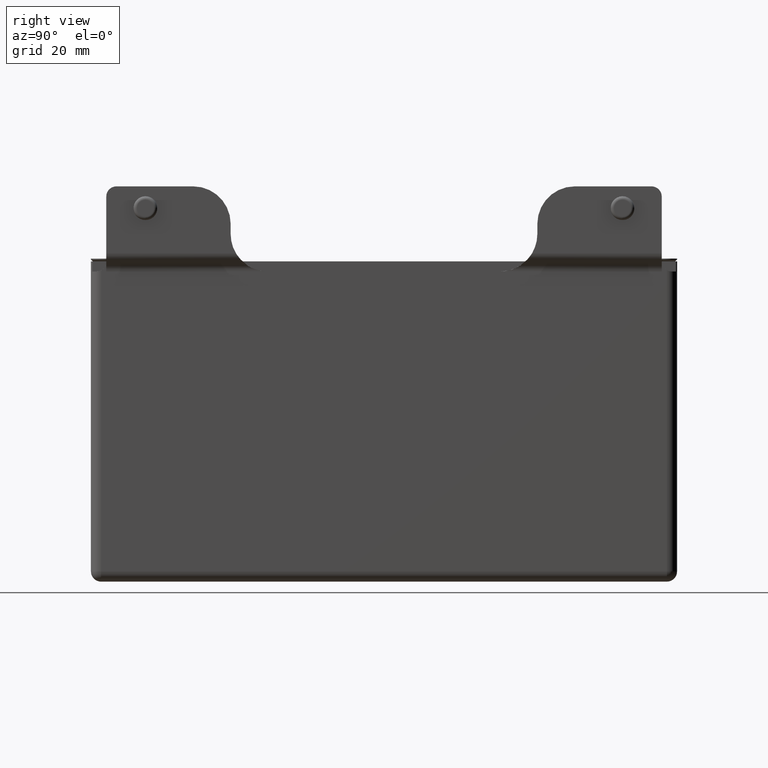
[diagram: clean part render]
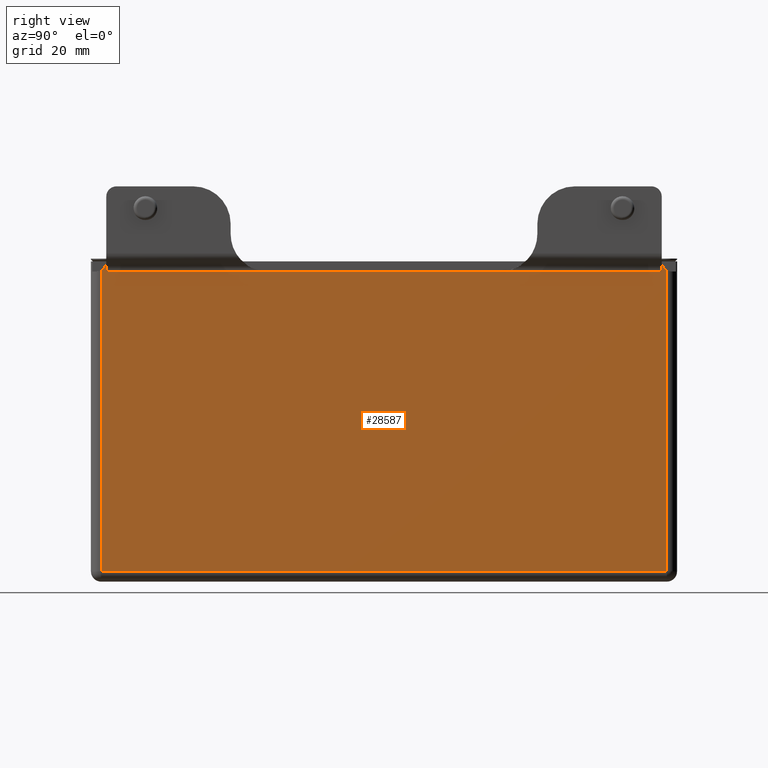
[diagram: same view with one face highlighted and labeled with its STEP entity id]
A machine part, right view. The second image highlights one B-rep face of the part: STEP entity #28587.
In plain terms, the highlighted planar face has unit normal (-1, -0, 0).
Its self-contained STEP definition (entity closure, byte-faithful):
#1365 = DIRECTION ( 'NONE',  ( -0.000000000000000000, -1.000000000000000000, -0.000000000000000000 ) ) ;
#1423 = CARTESIAN_POINT ( 'NONE',  ( 25.25000000000000355, -34.00000000000000000, 45.50000000000000000 ) ) ;
#1429 = CARTESIAN_POINT ( 'NONE',  ( 25.25000000000001421, -81.50000000000000000, 48.50000000000000000 ) ) ;
#1537 = DIRECTION ( 'NONE',  ( -0.000000000000000000, -0.000000000000000000, 1.000000000000000000 ) ) ;
#1896 = ORIENTED_EDGE ( 'NONE', *, *, #34763, .F. ) ;
#1975 = LINE ( 'NONE', #15790, #12034 ) ;
#3220 = VERTEX_POINT ( 'NONE', #1429 ) ;
#3795 = EDGE_CURVE ( 'NONE', #3220, #8066, #35333, .T. ) ;
#4545 = CARTESIAN_POINT ( 'NONE',  ( 25.25000000000001421, -82.99999999999997158, 45.50000000000000000 ) ) ;
#4792 = DIRECTION ( 'NONE',  ( -0.000000000000000000, -1.000000000000000000, -0.000000000000000000 ) ) ;
#5111 = ORIENTED_EDGE ( 'NONE', *, *, #27973, .T. ) ;
#5367 = ORIENTED_EDGE ( 'NONE', *, *, #18130, .T. ) ;
#5603 = CARTESIAN_POINT ( 'NONE',  ( 25.24999999999999289, 81.50000000000000000, 0.000000000000000000 ) ) ;
#6207 = DIRECTION ( 'NONE',  ( -1.000000000000000000, -1.210272192541958616E-16, 0.000000000000000000 ) ) ;
#6717 = CARTESIAN_POINT ( 'NONE',  ( 25.24999999999999289, 86.00000000000000000, -42.49999999999999289 ) ) ;
#7346 = DIRECTION ( 'NONE',  ( 0.000000000000000000, 0.000000000000000000, -1.000000000000000000 ) ) ;
#7469 = CARTESIAN_POINT ( 'NONE',  ( 25.25000000000001421, -82.99999999999997158, 45.90192378864669820 ) ) ;
#7560 = EDGE_CURVE ( 'NONE', #29841, #8066, #12636, .T. ) ;
#8066 = VERTEX_POINT ( 'NONE', #27055 ) ;
#8143 = EDGE_CURVE ( 'NONE', #9135, #21951, #36140, .T. ) ;
#8176 = LINE ( 'NONE', #35906, #23859 ) ;
#8619 = ORIENTED_EDGE ( 'NONE', *, *, #20704, .T. ) ;
#9135 = VERTEX_POINT ( 'NONE', #11851 ) ;
#9803 = VECTOR ( 'NONE', #7346, 1000.000000000000000 ) ;
#9845 = CARTESIAN_POINT ( 'NONE',  ( 25.25000000000000355, 81.50000000000000000, 45.50000000000000000 ) ) ;
#10219 = EDGE_CURVE ( 'NONE', #10797, #13582, #8176, .T. ) ;
#10599 = VERTEX_POINT ( 'NONE', #7469 ) ;
#10797 = VERTEX_POINT ( 'NONE', #20247 ) ;
#11043 = AXIS2_PLACEMENT_3D ( 'NONE', #18175, #17706, #34503 ) ;
#11090 = DIRECTION ( 'NONE',  ( 0.000000000000000000, -1.000000000000000000, 0.000000000000000000 ) ) ;
#11835 = CARTESIAN_POINT ( 'NONE',  ( 25.25000000000001421, -84.50000000000000000, 48.50000000000000000 ) ) ;
#11851 = CARTESIAN_POINT ( 'NONE',  ( 25.24999999999999289, 83.00000000000000000, -42.49999999999999289 ) ) ;
#12034 = VECTOR ( 'NONE', #4792, 1000.000000000000000 ) ;
#12636 = LINE ( 'NONE', #9845, #33907 ) ;
#12667 = VECTOR ( 'NONE', #35296, 1000.000000000000000 ) ;
#13357 = EDGE_CURVE ( 'NONE', #10599, #23482, #25028, .T. ) ;
#13582 = VERTEX_POINT ( 'NONE', #34751 ) ;
#13880 = CARTESIAN_POINT ( 'NONE',  ( 25.24999999999999289, 84.50000000000000000, 48.50000000000000000 ) ) ;
#14013 = CARTESIAN_POINT ( 'NONE',  ( 25.25000000000001421, -82.99999999999997158, -42.49999999999999289 ) ) ;
#14060 = CIRCLE ( 'NONE', #19510, 3.000000000000002665 ) ;
#14170 = FACE_OUTER_BOUND ( 'NONE', #26323, .T. ) ;
#15233 = VECTOR ( 'NONE', #1537, 1000.000000000000000 ) ;
#15257 = PLANE ( 'NONE',  #11043 ) ;
#15452 = CARTESIAN_POINT ( 'NONE',  ( 25.25000000000001421, -81.50000000000000000, 45.50000000000000000 ) ) ;
#15528 = EDGE_CURVE ( 'NONE', #21951, #27080, #14060, .T. ) ;
#15790 = CARTESIAN_POINT ( 'NONE',  ( 25.24999999999999289, 81.50000000000000000, 45.50000000000000000 ) ) ;
#16427 = DIRECTION ( 'NONE',  ( -0.000000000000000000, -1.000000000000000000, -0.000000000000000000 ) ) ;
#17706 = DIRECTION ( 'NONE',  ( -1.000000000000000000, -1.210272192541958616E-16, 0.000000000000000000 ) ) ;
#18130 = EDGE_CURVE ( 'NONE', #3220, #10599, #23596, .T. ) ;
#18175 = CARTESIAN_POINT ( 'NONE',  ( 25.24999999999999289, 86.00000000000000000, 45.50000000000000000 ) ) ;
#18527 = ORIENTED_EDGE ( 'NONE', *, *, #13357, .T. ) ;
#18581 = VECTOR ( 'NONE', #24995, 1000.000000000000000 ) ;
#19510 = AXIS2_PLACEMENT_3D ( 'NONE', #13880, #27790, #11090 ) ;
#20222 = ORIENTED_EDGE ( 'NONE', *, *, #7560, .T. ) ;
#20247 = CARTESIAN_POINT ( 'NONE',  ( 25.24999999999999289, 81.50000000000000000, 45.50000000000000000 ) ) ;
#20335 = DIRECTION ( 'NONE',  ( 0.000000000000000000, -1.000000000000000000, 0.000000000000000000 ) ) ;
#20704 = EDGE_CURVE ( 'NONE', #13582, #29841, #1975, .T. ) ;
#21040 = CARTESIAN_POINT ( 'NONE',  ( 25.24999999999999289, 83.00000000000000000, 45.90192378864668399 ) ) ;
#21152 = LINE ( 'NONE', #6717, #34222 ) ;
#21861 = AXIS2_PLACEMENT_3D ( 'NONE', #11835, #6207, #20335 ) ;
#21951 = VERTEX_POINT ( 'NONE', #21040 ) ;
#23482 = VERTEX_POINT ( 'NONE', #14013 ) ;
#23596 = CIRCLE ( 'NONE', #21861, 3.000000000000002665 ) ;
#23859 = VECTOR ( 'NONE', #16427, 1000.000000000000000 ) ;
#24285 = ORIENTED_EDGE ( 'NONE', *, *, #15528, .T. ) ;
#24725 = LINE ( 'NONE', #5603, #18581 ) ;
#24995 = DIRECTION ( 'NONE',  ( 0.000000000000000000, 0.000000000000000000, 1.000000000000000000 ) ) ;
#25028 = LINE ( 'NONE', #4545, #9803 ) ;
#25577 = CARTESIAN_POINT ( 'NONE',  ( 25.24999999999999289, 81.50000000000000000, 48.50000000000000000 ) ) ;
#26220 = DIRECTION ( 'NONE',  ( -1.210272192541958616E-16, 1.000000000000000000, 0.000000000000000000 ) ) ;
#26323 = EDGE_LOOP ( 'NONE', ( #34773, #8619, #20222, #31231, #5367, #18527, #5111, #32021, #24285, #1896 ) ) ;
#27055 = CARTESIAN_POINT ( 'NONE',  ( 25.25000000000000355, -81.50000000000000000, 45.50000000000000000 ) ) ;
#27080 = VERTEX_POINT ( 'NONE', #25577 ) ;
#27790 = DIRECTION ( 'NONE',  ( -1.000000000000000000, -1.210272192541958616E-16, 0.000000000000000000 ) ) ;
#27973 = EDGE_CURVE ( 'NONE', #23482, #9135, #21152, .T. ) ;
#28587 = ADVANCED_FACE ( 'NONE', ( #14170 ), #15257, .F. ) ;
#29841 = VERTEX_POINT ( 'NONE', #1423 ) ;
#31231 = ORIENTED_EDGE ( 'NONE', *, *, #3795, .F. ) ;
#32021 = ORIENTED_EDGE ( 'NONE', *, *, #8143, .T. ) ;
#32168 = CARTESIAN_POINT ( 'NONE',  ( 25.24999999999999289, 83.00000000000000000, 45.50000000000000000 ) ) ;
#33907 = VECTOR ( 'NONE', #1365, 1000.000000000000000 ) ;
#34222 = VECTOR ( 'NONE', #26220, 1000.000000000000000 ) ;
#34503 = DIRECTION ( 'NONE',  ( 1.210272192541958616E-16, -1.000000000000000000, 0.000000000000000000 ) ) ;
#34751 = CARTESIAN_POINT ( 'NONE',  ( 25.24999999999999289, 34.00000000000000000, 45.50000000000000000 ) ) ;
#34763 = EDGE_CURVE ( 'NONE', #10797, #27080, #24725, .T. ) ;
#34773 = ORIENTED_EDGE ( 'NONE', *, *, #10219, .T. ) ;
#35296 = DIRECTION ( 'NONE',  ( 0.000000000000000000, 0.000000000000000000, -1.000000000000000000 ) ) ;
#35333 = LINE ( 'NONE', #15452, #12667 ) ;
#35906 = CARTESIAN_POINT ( 'NONE',  ( 25.25000000000000355, 81.50000000000000000, 45.50000000000000000 ) ) ;
#36140 = LINE ( 'NONE', #32168, #15233 ) ;